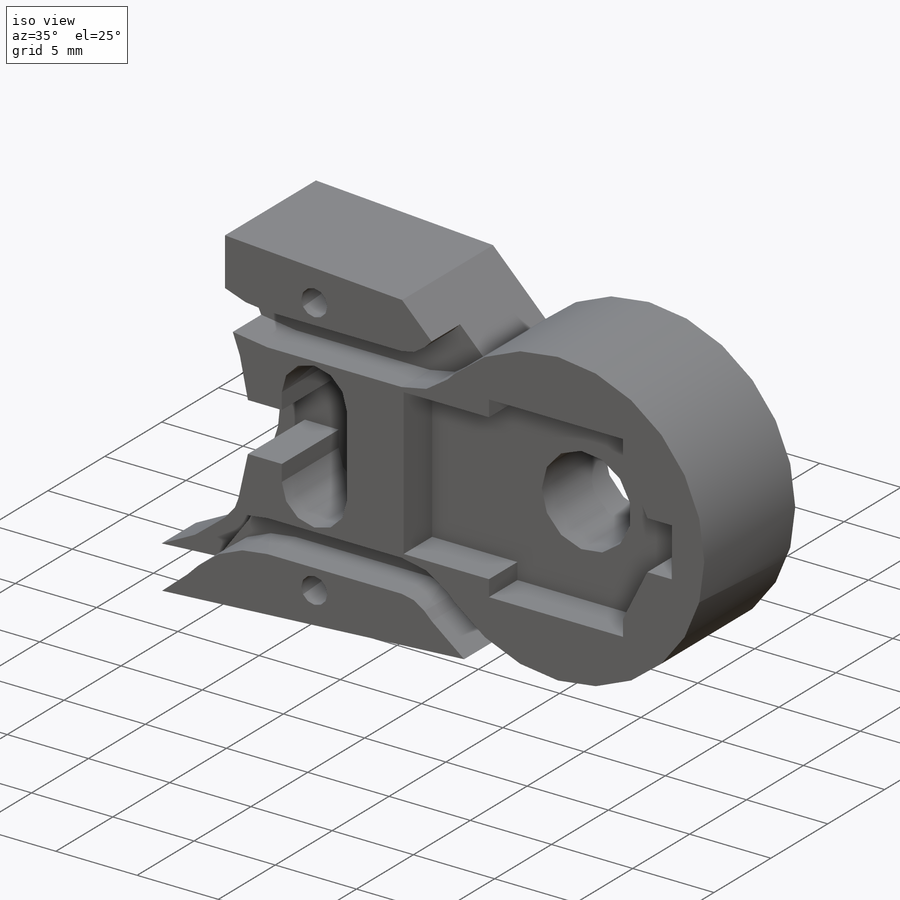
[diagram: iso view]
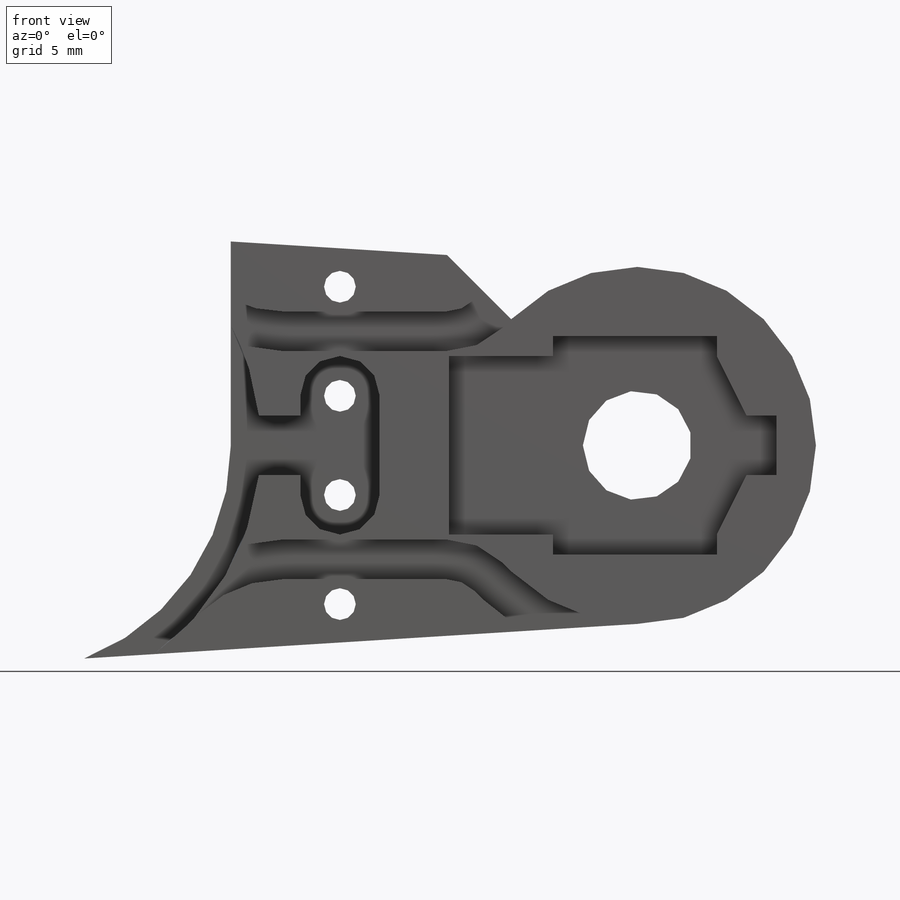
[diagram: front view]
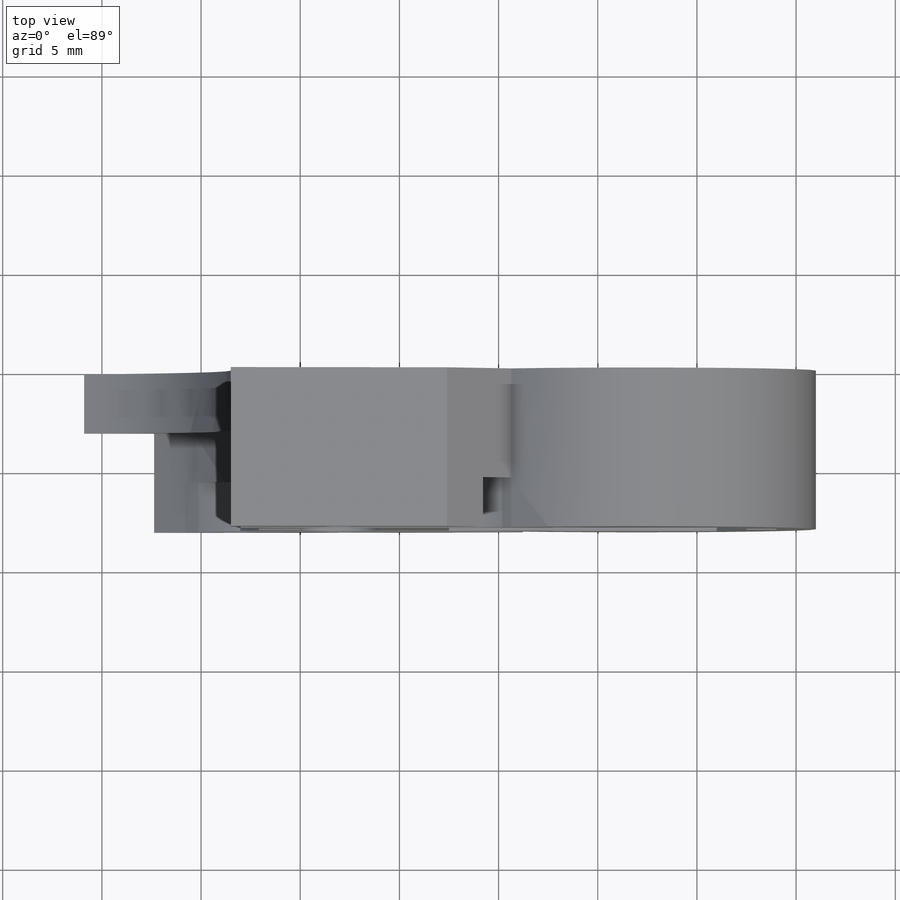
[diagram: top view]
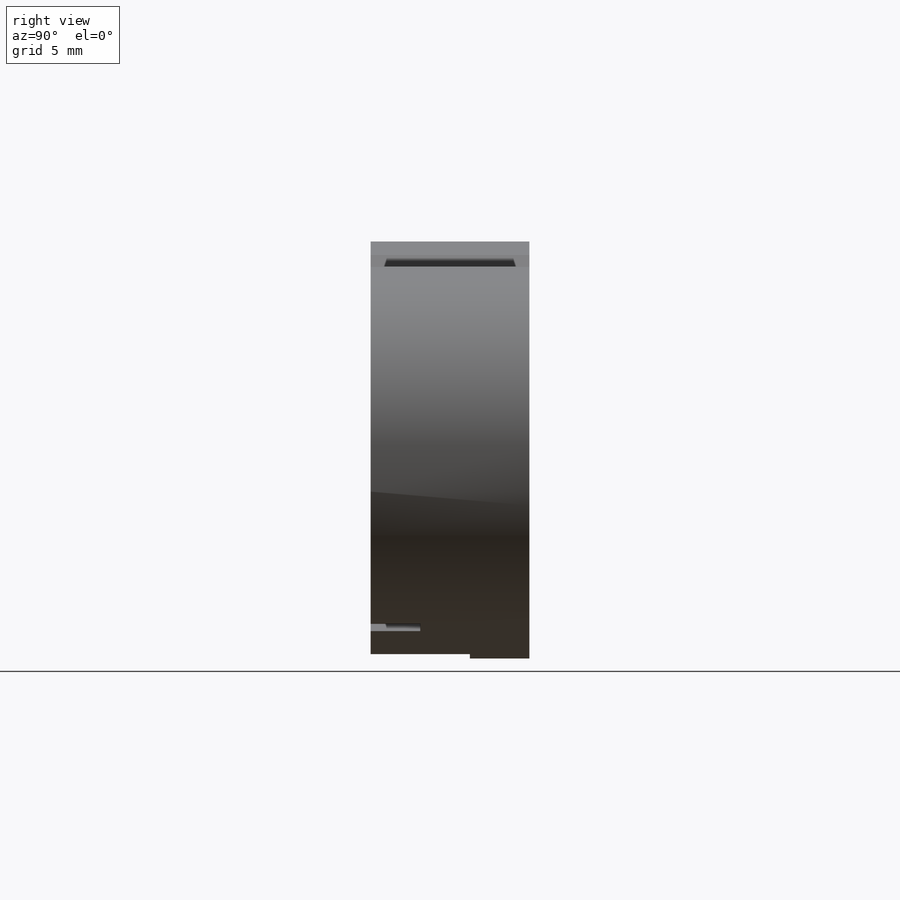
[diagram: right view]
SOLIDWORKS PART (.sldprt)
format: sldprt  version: not decoded by parser v0  size: 397,312 bytes
history: native  units: mm
features: sketch x5, cut_extrude x4, material x1, extrude x1 (+13 scaffold rows collapsed)
feature tree (24):
  scaffold x13  (default folders/planes/origin — collapsed)
  material  "Material <not specified>"
  sketch  "Sketch1"  dims[D1=~9.57224mm]
  extrude  "Boss-Extrude1"  Depth=8mm
  sketch  "Sketch2"  dims[D1=9.5mm]
  cut_extrude  "Pot Insert"  Depth=2.5mm
  sketch  "Sketch7"  dims[D1=~4.010821mm]
  cut_extrude  "Middle Flex/Ext Canal"  Depth=5mm
  sketch  "Sketch6"  dims[c1.D1=4.0mm c1.D2=6.0mm c1.D3=19.0mm c2.D1=4.0mm c2.D2=4.0mm c2.D3=2.0mm c2.D4=8.0mm c2.D5=6.0mm c3.D1=~5.486544mm c3.D2=~6.314971mm c3.D3=~1.857494mm c4.D1=~7.022078mm c4.D4=~7.64826mm c4.D6=~8.216789mm]
  cut_extrude  "Distal Flex/Ext Canal"  Depth=2.5mm
  sketch  "Sketch3"  dims[D1=3.4mm]
  cut_extrude  "Screw Holes"  [1 undecoded]
decode coverage: 9 of 10 modeling features carry decoded parameters
note: ~ marks probable driven/reference dimensions
note: 1 parameter value undecoded
note: suppression state not decoded; provenance and decode notes live in map.json
